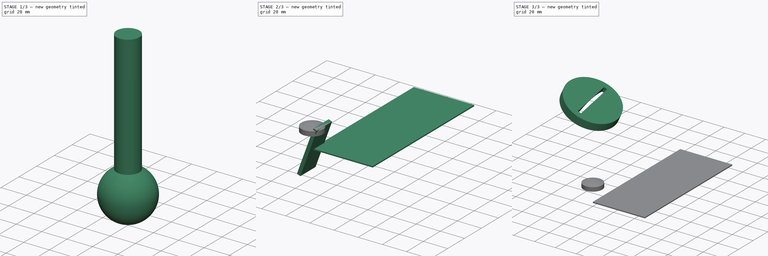
[diagram: build sequence overview — one tinted view per stage of 3, left to right]
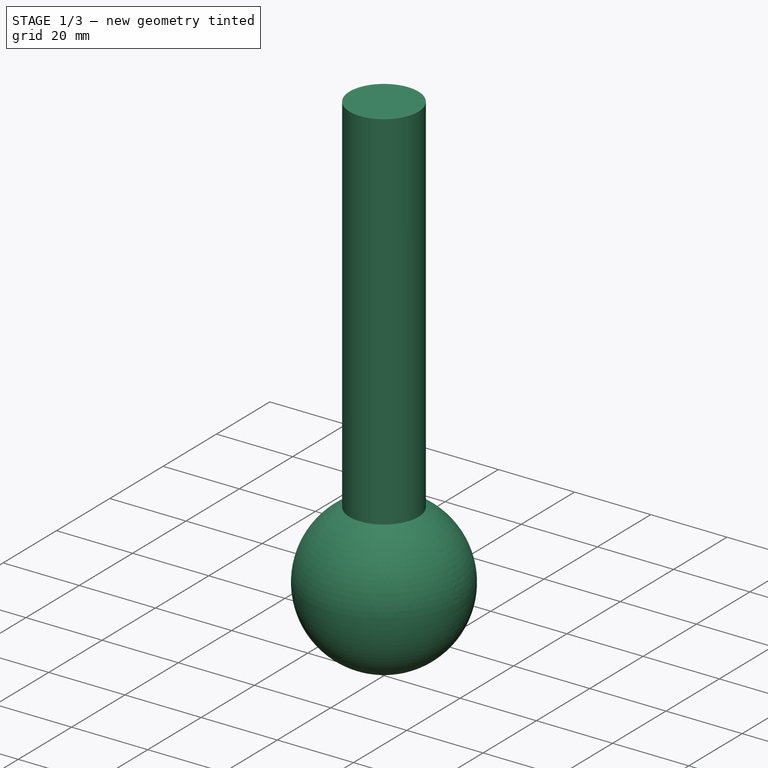
[diagram: stage 1 of 3 — iso view after this stage's code; geometry added in this stage tinted green]
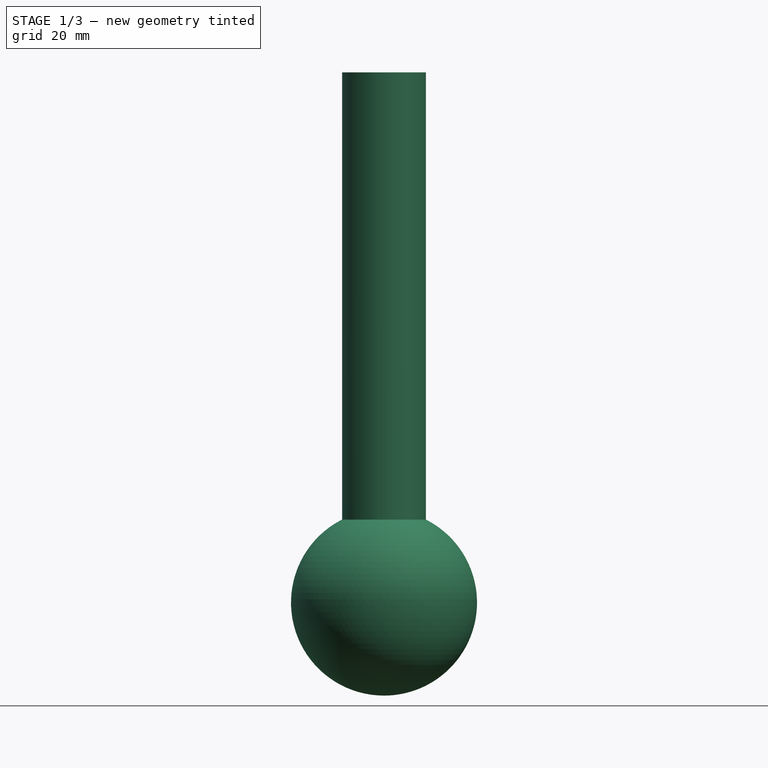
[diagram: stage 1 of 3 — front view after this stage's code; geometry added in this stage tinted green]
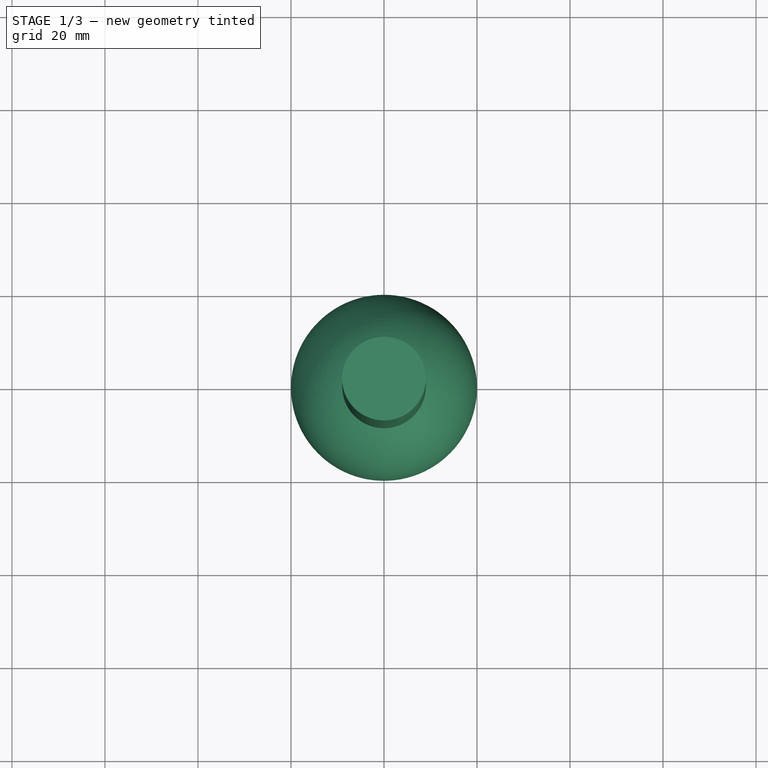
[diagram: stage 1 of 3 — top view after this stage's code; geometry added in this stage tinted green]
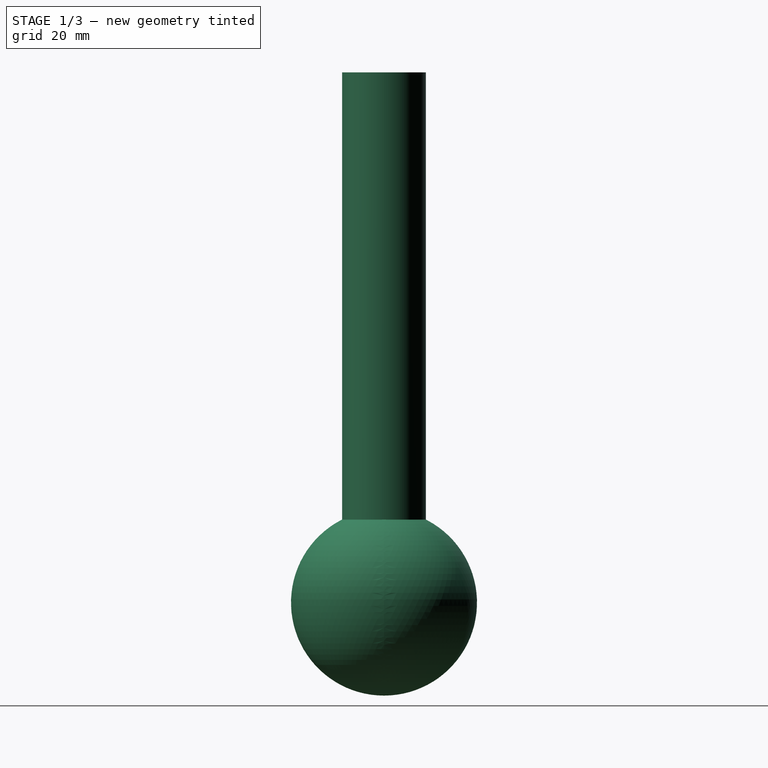
[diagram: stage 1 of 3 — right view after this stage's code; geometry added in this stage tinted green]
FCSTD DOCUMENT  (FreeCAD 1.1R44874 (Git))
Label: main
License: All rights reserved
LicenseURL: http://en.wikipedia.org/wiki/All_rights_reserved
objects: App::LinkGroupPython×5, App::Point×4, App::Part×3, App::Link×2, Sketcher::SketchObject×1, Part::Revolution×1, Part::Box×1, Part::Cut×1, Part::Sphere×1, Part::Cylinder×1, Part::MultiCommon×1, Part::FeaturePython×1, Part::Scale×1, PartDesign::AdditiveBox×1, PartDesign::Body×1
note: 14 computed .brp shape members not serialized (recipe doc carries the construction recipe); baked Part::Feature solids carry a one-line shape summary decoded from their .brp

FEATURE [Part::Sphere] Sphere
  Angle1 = -90
  Angle2 = 90
  Angle3 = 360
  AttacherType = Attacher::AttachEngine3D
  Radius = 20
FEATURE [Part::Cylinder] Cylinder
  Angle = 360
  AttacherType = Attacher::AttachEngine3D
  FirstAngle = 0
  Height = 100
  Placement = pos=(0,0,14) rot=(0,0,1;0rad)
  Radius = 9
  SecondAngle = 0
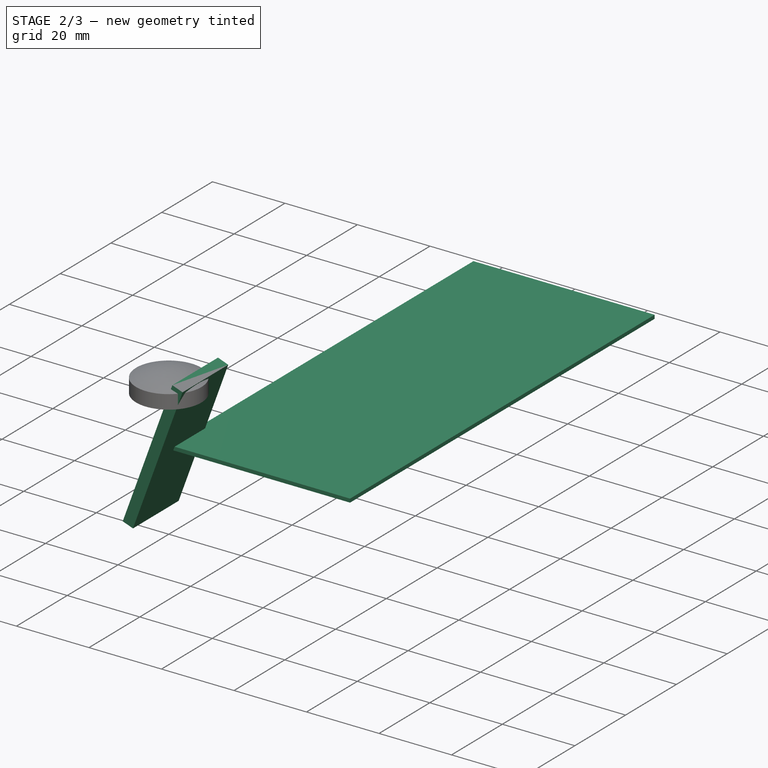
[diagram: stage 2 of 3 — iso view after this stage's code; geometry added in this stage tinted green]
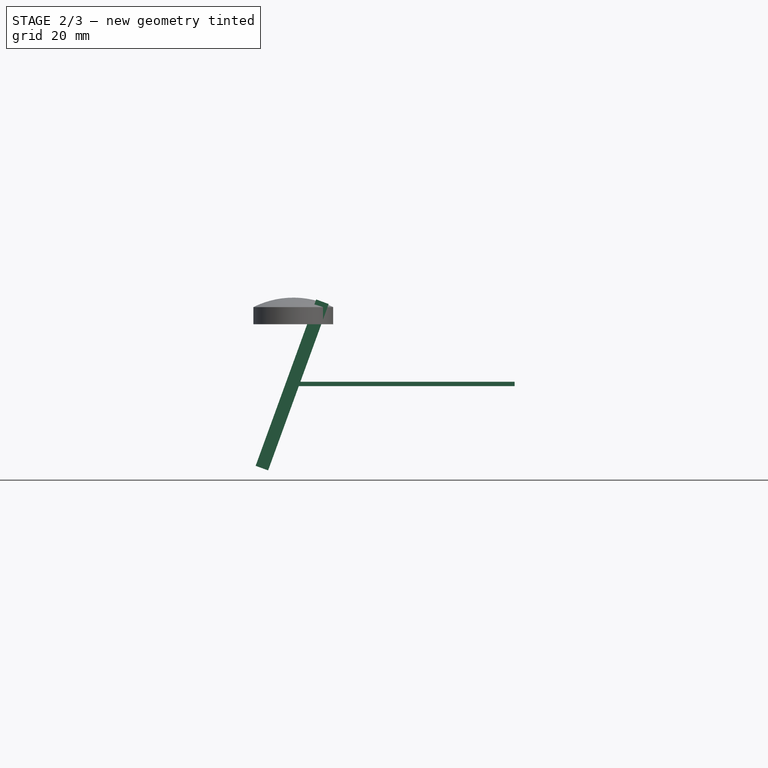
[diagram: stage 2 of 3 — front view after this stage's code; geometry added in this stage tinted green]
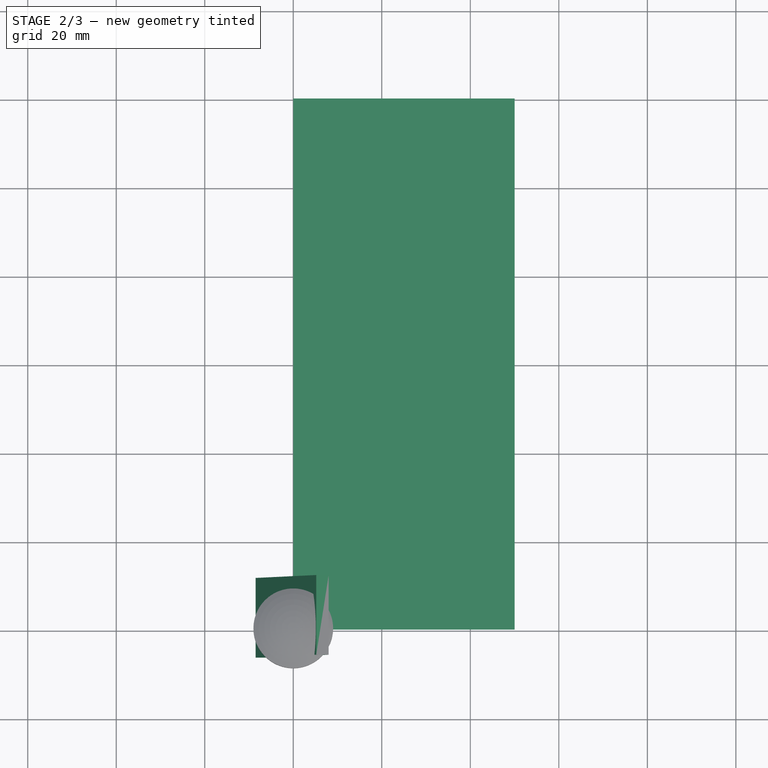
[diagram: stage 2 of 3 — top view after this stage's code; geometry added in this stage tinted green]
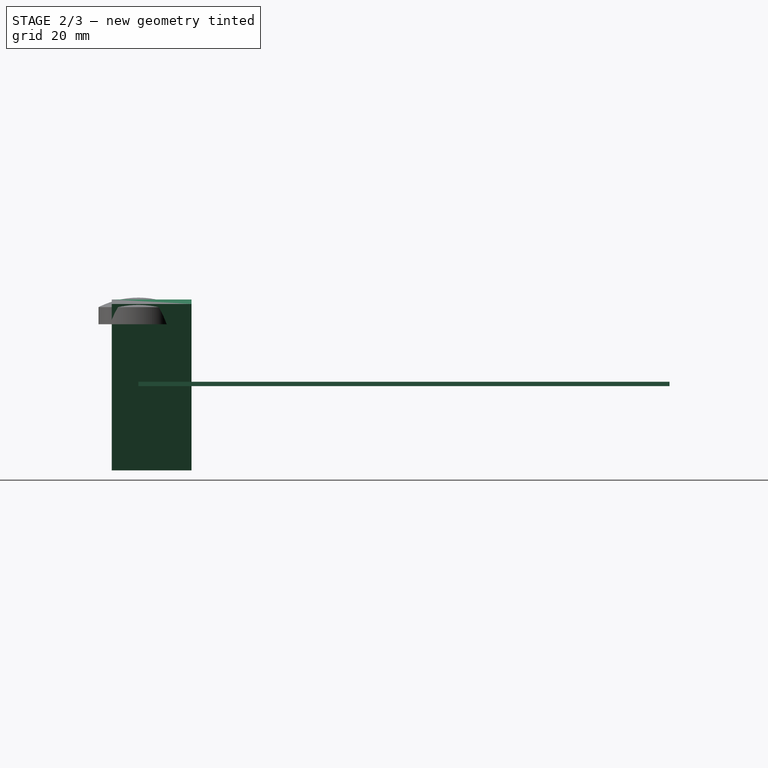
[diagram: stage 2 of 3 — right view after this stage's code; geometry added in this stage tinted green]
FEATURE [Part::Box] Box  label="slot"
  AttacherType = Attacher::AttachEngine3D
  Height = 40
  Length = 3
  Placement = pos=(-8.5,-6,-18) rot=(0,1,0;0.349066rad)
  Width = 18
FEATURE [Part::MultiCommon] Common  label="spherical-lens"
  Behavior = 1
  Shapes = -> [Sphere,Cylinder]
FEATURE [App::Link] Link001  label="spherical-lens001"
  LinkedObject = -> Common
FEATURE [App::Part] Part  label="lens2"
  Group = -> [Link001]
  Origin = -> Origin
FEATURE [App::Link] Link  label="soltted-parabolic-mirror001"
  LinkPlacement = pos=(-82,18,21) rot=(1,1,1;-3.75246rad)
  LinkedObject = -> Cut
  Placement = pos=(-82,18,21) rot=(1,1,1;-3.75246rad)
FEATURE [App::Part] Part002  label="slottedMirror"
  Group = -> [Sketch,Revolve,Box,Cut,Link]
  Origin = -> Origin002
FEATURE [App::LinkGroupPython] OpticalMirrorGroup  # WARN: FeaturePython — macro-defined, semantics opaque (R4)
  AbsorptionLength = 0
  ElementList = -> [Part002]
  GratingDiffractionOrder = 1
  GratingLinesOrientation = (0,0,1)
  GratingLinesPerMillimeter = 1000
  GratingType = 0
  LinkMode = 0
  ModifyPhiDomain = 0, 2*pi
  ModifyThetaDomain = -pi/2, pi/2
  OpticalType = 0
  PowerPhiDomain = 0, 2*pi
  PowerThetaDomain = -pi/2, pi/2
  RecordHits = false
  Reflectivity = 1
  RefractiveIndex = 2
FEATURE [Part::FeaturePython] OpticalSimulationSettings  # WARN: FeaturePython — macro-defined, semantics opaque (R4)
  Active = true
  DistanceTolerance = 1e-12
  EnableStoreSingleShotData = false
  EndAfterHits = inf
  EndAfterIterations = inf
  EndAfterRays = inf
  MaxIntersections = 100
  MaxRayLength = 1500
  RaysPerIteration = 100
  SequentialMode = false
  ShowRaysInContinuousMode = true
  StoreHitFanIndex = false
  StoreHitInitDirection = false
  StoreHitInitPhi = false
  StoreHitInitPoint = false
  StoreHitInitPower = false
  StoreHitInitTheta = false
  StoreHitInitWavelength = false
  StoreHitRayIndex = false
  StoreHitTotalFanCount = false
  StoreHitTotalRaysInFan = false
  WorkerProcessCount = 1
FEATURE [Part::Scale] Scale
  Base = -> Common
  Placement = pos=(7,-5,-28) rot=(0,0,1;0rad)
  Uniform = false
  UniformScale = 1
  XScale = 2
  YScale = 4
  ZScale = 3
FEATURE [App::Part] Part001  label="lens1"
  Group = -> [Sphere,Cylinder,Common,Scale]
  Origin = -> Origin001
  Placement = pos=(-133,5,86) rot=(0,1,0;-0.506145rad)
FEATURE [PartDesign::AdditiveBox] Box001
  AttacherType = Attacher::AttachEngine3D
  Height = 1
  Length = 50
  Refine = true
  Suppressed = false
  Width = 120
FEATURE [PartDesign::Body] Body  label="detector"
  AllowCompound = false
  Group = -> [Box001]
  Origin = -> Origin004
  Placement = pos=(-192,-66,137) rot=(0,1,0;-0.680678rad)
  Tip = -> Box001
FEATURE [App::LinkGroupPython] OpticalAbsorberGroup  # WARN: FeaturePython — macro-defined, semantics opaque (R4)
  AbsorptionLength = 0
  ElementList = -> [Body]
  GratingDiffractionOrder = 1
  GratingLinesOrientation = (0,0,1)
  GratingLinesPerMillimeter = 1000
  GratingType = 0
  LinkMode = 0
  ModifyPhiDomain = 0, 2*pi
  ModifyThetaDomain = -pi/2, pi/2
  OpticalType = 2
  PowerPhiDomain = 0, 2*pi
  PowerThetaDomain = -pi/2, pi/2
  RecordHits = true
  Reflectivity = 1
  RefractiveIndex = 2
FEATURE [App::LinkGroupPython] OpticalPointSource  # WARN: FeaturePython — macro-defined, semantics opaque (R4)
  Divergence = -
  FanPhi0 = 0
  Fans = 2
  FocalLength = 0
  LinkMode = 0
  MaxIntersectionsScale = 1
  MaxRayLengthScale = 1
  PhiDomain = 0, 2*pi
  PhiResolutionNumericMode = 3
  PowerDensity = exp(-theta^2/0.05)
  RadiusDomain = 0, 10
  RadiusResolutionNumericMode = 100000
  RandomNumberGeneratorMode = ?
  RaysPerFan = 15
  RaysPerIterationScale = 1
  RecordRays = false
  ThetaDomain = 0, pi/2
  ThetaResolutionNumericMode = 100000
  Wavelength = 500
FEATURE [App::Point] Origin005  label="Origin"
  Role = Origin
FEATURE [App::Point] Origin006  label="Origin"
  Role = Origin
FEATURE [App::Point] Origin007  label="Origin"
  Role = Origin
FEATURE [App::Point] Origin008  label="Origin"
  Role = Origin
FEATURE [App::LinkGroupPython] OpticalLensGroup001  label="OpticalLensGroup002"  # WARN: FeaturePython — macro-defined, semantics opaque (R4)
  AbsorptionLength = inf
  ElementList = -> [Part]
  GratingDiffractionOrder = 1
  GratingLinesOrientation = (0,0,1)
  GratingLinesPerMillimeter = 1000
  GratingType = 0
  LinkMode = 0
  ModifyPhiDomain = 0, 2*pi
  ModifyThetaDomain = -pi/2, pi/2
  OpticalType = 1
  PowerPhiDomain = 0, 2*pi
  PowerThetaDomain = -pi/2, pi/2
  RecordHits = false
  Reflectivity = 1
  RefractiveIndex = 2
FEATURE [App::LinkGroupPython] OpticalLensGroup  label="OpticalLensGroup003"  # WARN: FeaturePython — macro-defined, semantics opaque (R4)
  AbsorptionLength = inf
  ElementList = -> [Part001]
  GratingDiffractionOrder = 1
  GratingLinesOrientation = (0,0,1)
  GratingLinesPerMillimeter = 1000
  GratingType = 0
  LinkMode = 0
  ModifyPhiDomain = 0, 2*pi
  ModifyThetaDomain = -pi/2, pi/2
  OpticalType = 1
  PowerPhiDomain = 0, 2*pi
  PowerThetaDomain = -pi/2, pi/2
  RecordHits = false
  Reflectivity = 1
  RefractiveIndex = 2
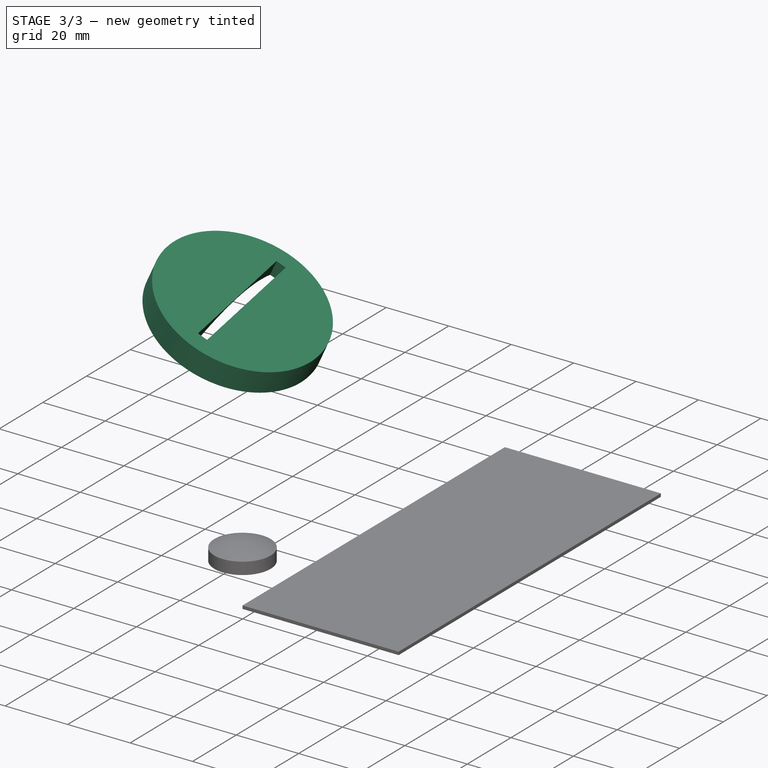
[diagram: stage 3 of 3 — iso view after this stage's code; geometry added in this stage tinted green]
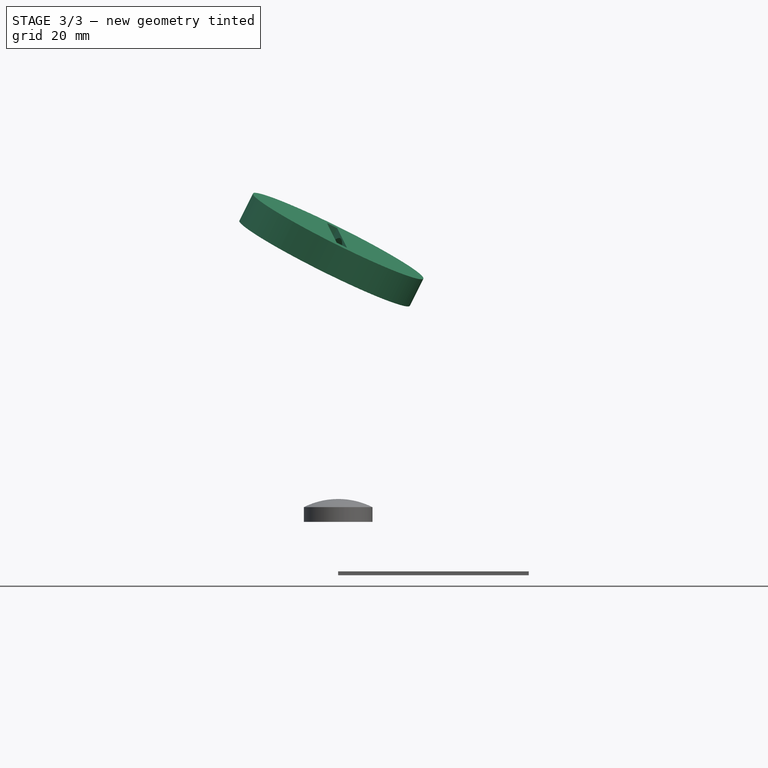
[diagram: stage 3 of 3 — front view after this stage's code; geometry added in this stage tinted green]
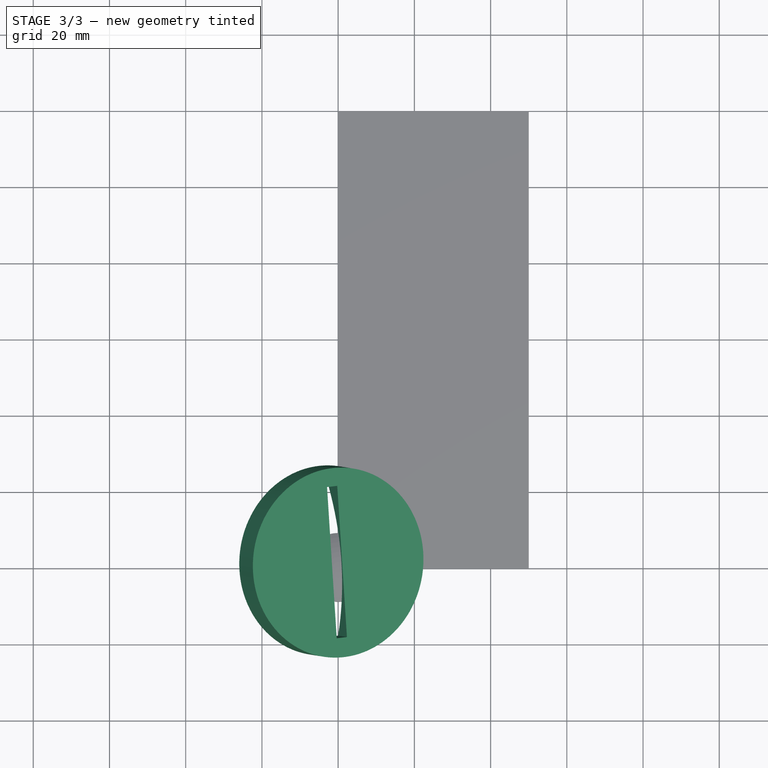
[diagram: stage 3 of 3 — top view after this stage's code; geometry added in this stage tinted green]
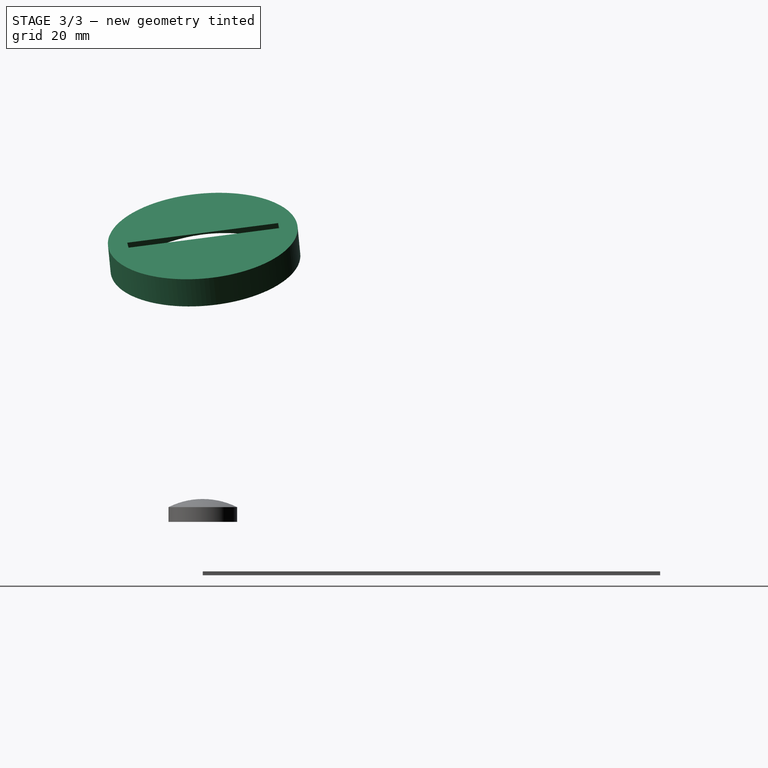
[diagram: stage 3 of 3 — right view after this stage's code; geometry added in this stage tinted green]
FEATURE [Sketcher::SketchObject] Sketch  label="parabola"
  ArcFitTolerance = 0
  ExternalTypes = [0]
  FullyConstrained = true
  MakeInternals = false
  _ExternalGeoVersion = 0
  sketch-geometry (6):
    g0: LineSegment StartX=-25 StartY=0 StartZ=0 EndX=0 EndY=0 EndZ=0
    g1: LineSegment StartX=-25 StartY=0 StartZ=0 EndX=-25 EndY=8 EndZ=0
    g2: ArcOfParabola CenterX=0 CenterY=0.410997 CenterZ=0 NormalX=0 NormalY=0 NormalZ=1 Focal=20.589 AngleXU=1.5708 StartAngle=1e-16 EndAngle=25
    g3: GeomPoint [constr] X=2.3e-15 Y=21 Z=0
    g4: LineSegment [constr] StartX=0 StartY=0.410997 StartZ=0 EndX=2.3e-15 EndY=21 EndZ=0
    g5: LineSegment StartX=-1e-16 StartY=0.410997 StartZ=0 EndX=0 EndY=0 EndZ=0
  constraints (16):
    c: Horizontal(g0)
    c: DistanceX(g0,g0) = 25
    c: DistanceX(g0,g-1) = 25
    c: DistanceY(g0,g-1) = 0
    c: Coincident(g1,g0)
    c: Vertical(g1)
    c: DistanceY(g0,g1) = 8
    c: InternalAlignment(g3,g2)
    c: InternalAlignment(g4,g2)
    c: Coincident(g1,g2)
    c: DistanceX(g-1,g2) = 0
    c: DistanceY(g-1,g3) = 21
    c: Coincident(g5,g2)
    c: Coincident(g5,g0)
    c: DistanceX(g0,g2) = 0
    c: DistanceX(g3) = 0
FEATURE [Part::Revolution] Revolve
  Angle = 360
  Axis = (0,1,0)
  Base = (0,0,0)
  FaceMakerClass = Part::FaceMakerBullseye
  Solid = true
  Source = -> Sketch
  Symmetric = false
FEATURE [Part::Cut] Cut  label="soltted-parabolic-mirror"
  Base = -> Revolve
  Placement = pos=(0,0,89) rot=(-2,0,1;1.48353rad)
  Tool = -> Box
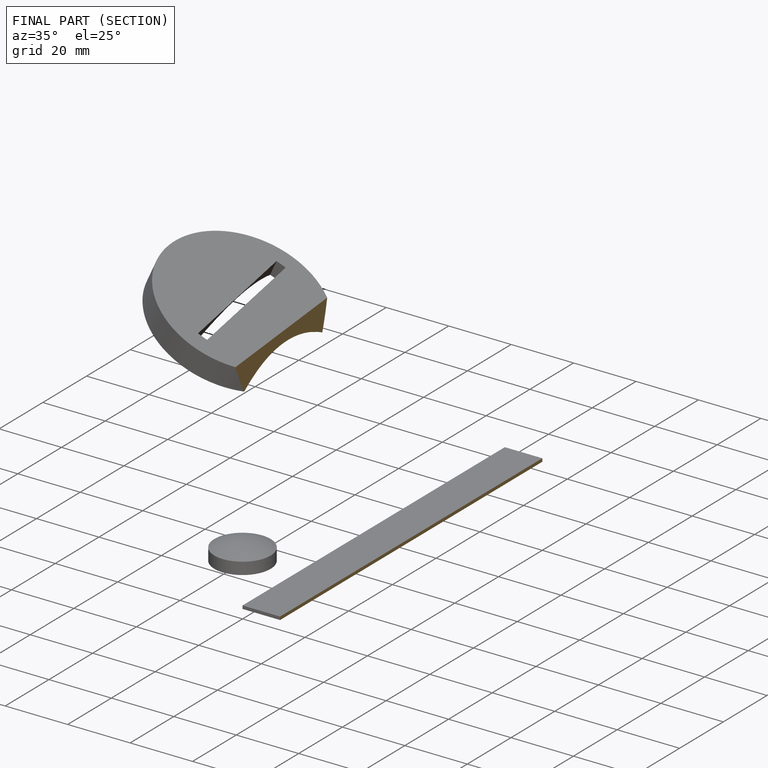
[diagram: finished part — half-section view (interior)]
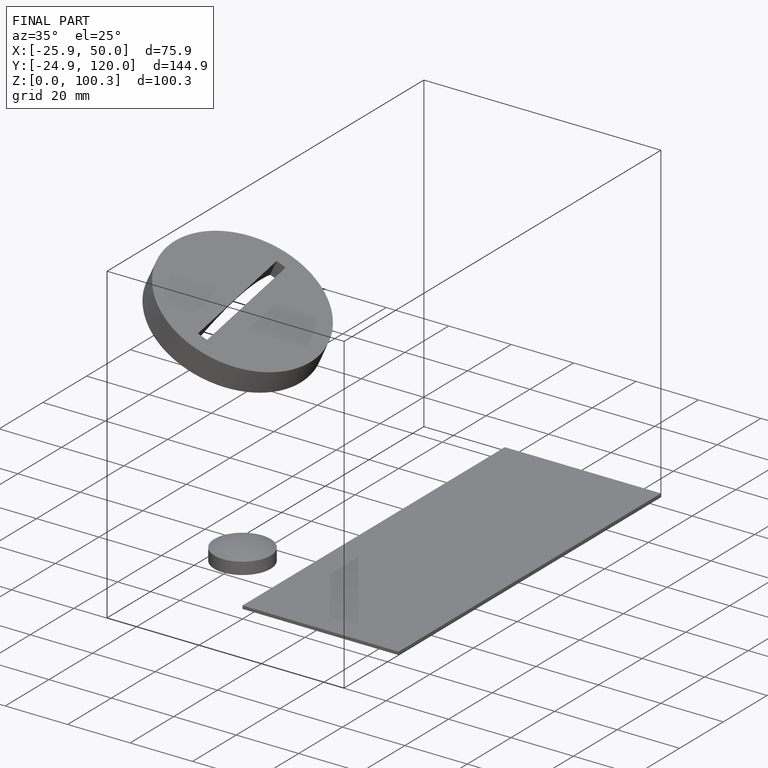
[diagram: finished part — iso view with bounding-box wireframe]
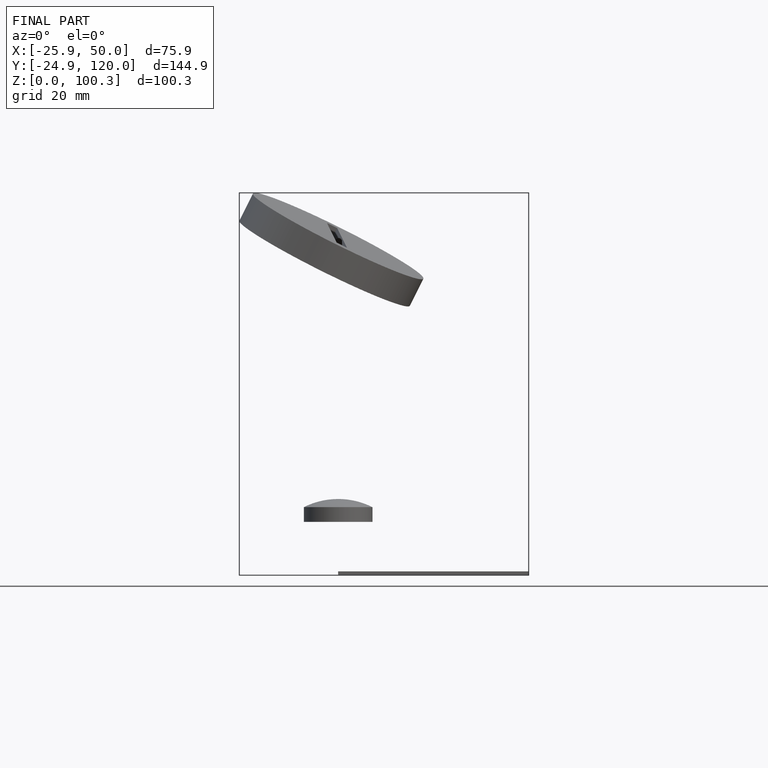
[diagram: finished part — front view with bounding-box wireframe]
